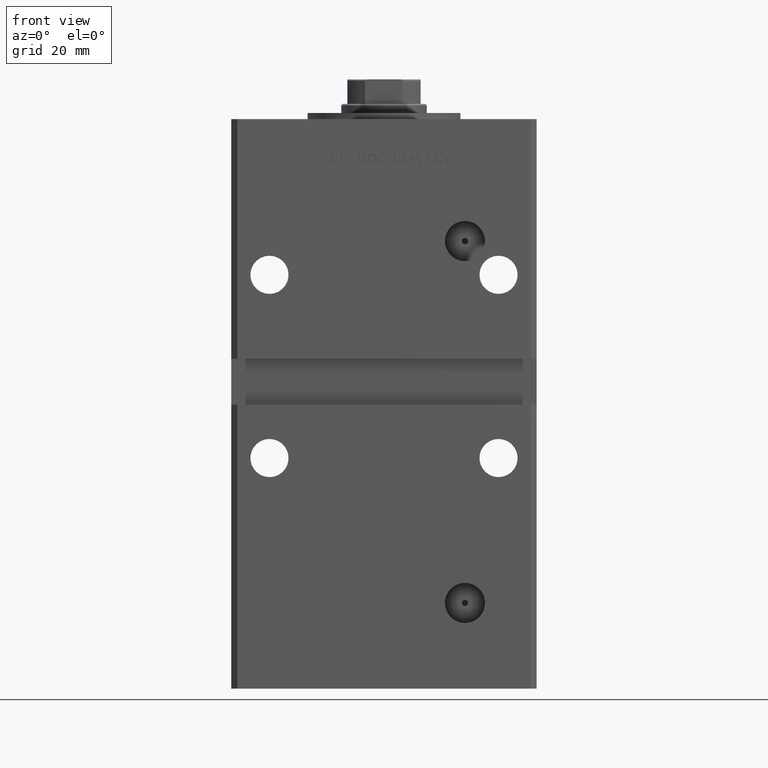
[diagram: clean part render]
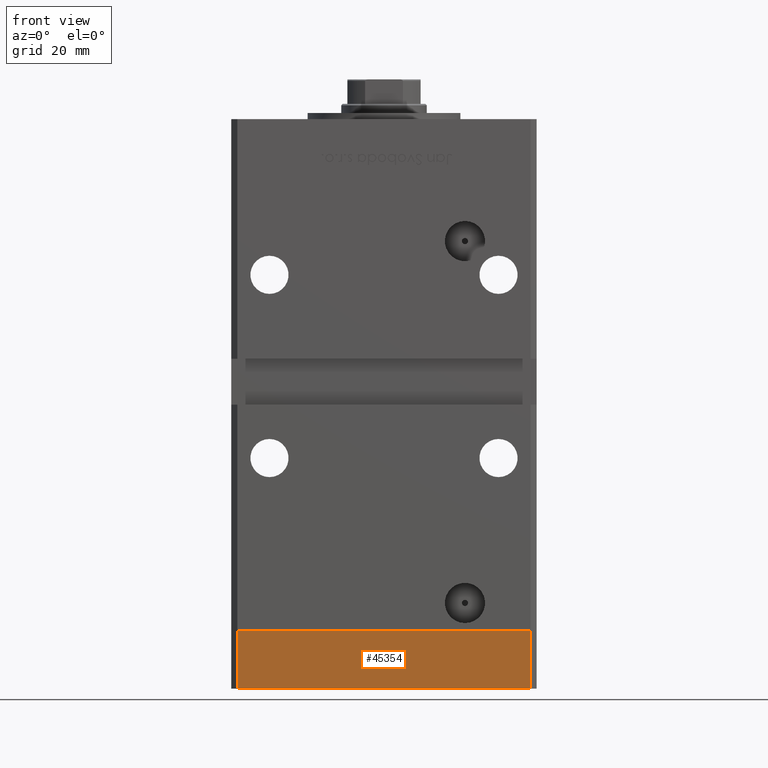
[diagram: same view with one face highlighted and labeled with its STEP entity id]
A machine part, front view. The second image highlights one B-rep face of the part: STEP entity #45354.
In plain terms, the highlighted planar face has unit normal (0, -1, -0).
Its self-contained STEP definition (entity closure, byte-faithful):
#5330 = LINE ( 'NONE', #34897, #40742 ) ;
#5897 = CARTESIAN_POINT ( 'NONE',  ( -47.99999999999999289, -43.50000000000001421, 0.000000000000000000 ) ) ;
#6153 = CARTESIAN_POINT ( 'NONE',  ( 47.99999999999999289, -43.50000000000001421, -19.00000000000000000 ) ) ;
#7206 = LINE ( 'NONE', #23619, #50775 ) ;
#9632 = EDGE_CURVE ( 'NONE', #20399, #52664, #21887, .T. ) ;
#10636 = CARTESIAN_POINT ( 'NONE',  ( -47.99999999999999289, -43.50000000000001421, -19.00000000000000000 ) ) ;
#11254 = AXIS2_PLACEMENT_3D ( 'NONE', #49439, #41112, #21239 ) ;
#11256 = VERTEX_POINT ( 'NONE', #6153 ) ;
#11501 = DIRECTION ( 'NONE',  ( 1.000000000000000000, 0.000000000000000000, 0.000000000000000000 ) ) ;
#13104 = LINE ( 'NONE', #17912, #35400 ) ;
#13770 = ORIENTED_EDGE ( 'NONE', *, *, #47126, .T. ) ;
#15416 = ORIENTED_EDGE ( 'NONE', *, *, #20062, .F. ) ;
#17912 = CARTESIAN_POINT ( 'NONE',  ( 47.99999999999999289, -43.50000000000001421, -19.00000000000000000 ) ) ;
#20062 = EDGE_CURVE ( 'NONE', #52664, #35655, #5330, .T. ) ;
#20399 = VERTEX_POINT ( 'NONE', #10636 ) ;
#21239 = DIRECTION ( 'NONE',  ( 0.000000000000000000, -0.000000000000000000, -1.000000000000000000 ) ) ;
#21887 = LINE ( 'NONE', #29164, #47409 ) ;
#21952 = ORIENTED_EDGE ( 'NONE', *, *, #9632, .F. ) ;
#23619 = CARTESIAN_POINT ( 'NONE',  ( -47.99999999999999289, -43.50000000000001421, -19.00000000000000000 ) ) ;
#25053 = ORIENTED_EDGE ( 'NONE', *, *, #48192, .T. ) ;
#25282 = PLANE ( 'NONE',  #11254 ) ;
#29164 = CARTESIAN_POINT ( 'NONE',  ( -47.99999999999999289, -43.50000000000001421, -19.00000000000000000 ) ) ;
#34629 = DIRECTION ( 'NONE',  ( 1.000000000000000000, 0.000000000000000000, 0.000000000000000000 ) ) ;
#34897 = CARTESIAN_POINT ( 'NONE',  ( -47.99999999999999289, -43.50000000000001421, 0.000000000000000000 ) ) ;
#35400 = VECTOR ( 'NONE', #41871, 1000.000000000000000 ) ;
#35655 = VERTEX_POINT ( 'NONE', #41001 ) ;
#36805 = EDGE_LOOP ( 'NONE', ( #15416, #21952, #13770, #25053 ) ) ;
#40742 = VECTOR ( 'NONE', #34629, 1000.000000000000000 ) ;
#41001 = CARTESIAN_POINT ( 'NONE',  ( 47.99999999999999289, -43.50000000000001421, 0.000000000000000000 ) ) ;
#41112 = DIRECTION ( 'NONE',  ( 0.000000000000000000, -1.000000000000000000, 0.000000000000000000 ) ) ;
#41782 = DIRECTION ( 'NONE',  ( 0.000000000000000000, 0.000000000000000000, 1.000000000000000000 ) ) ;
#41871 = DIRECTION ( 'NONE',  ( 0.000000000000000000, 0.000000000000000000, 1.000000000000000000 ) ) ;
#45135 = FACE_OUTER_BOUND ( 'NONE', #36805, .T. ) ;
#45354 = ADVANCED_FACE ( 'NONE', ( #45135 ), #25282, .T. ) ;
#47126 = EDGE_CURVE ( 'NONE', #20399, #11256, #7206, .T. ) ;
#47409 = VECTOR ( 'NONE', #41782, 1000.000000000000000 ) ;
#48192 = EDGE_CURVE ( 'NONE', #11256, #35655, #13104, .T. ) ;
#49439 = CARTESIAN_POINT ( 'NONE',  ( -47.99999999999999289, -43.50000000000001421, -19.00000000000000000 ) ) ;
#50775 = VECTOR ( 'NONE', #11501, 1000.000000000000000 ) ;
#52664 = VERTEX_POINT ( 'NONE', #5897 ) ;